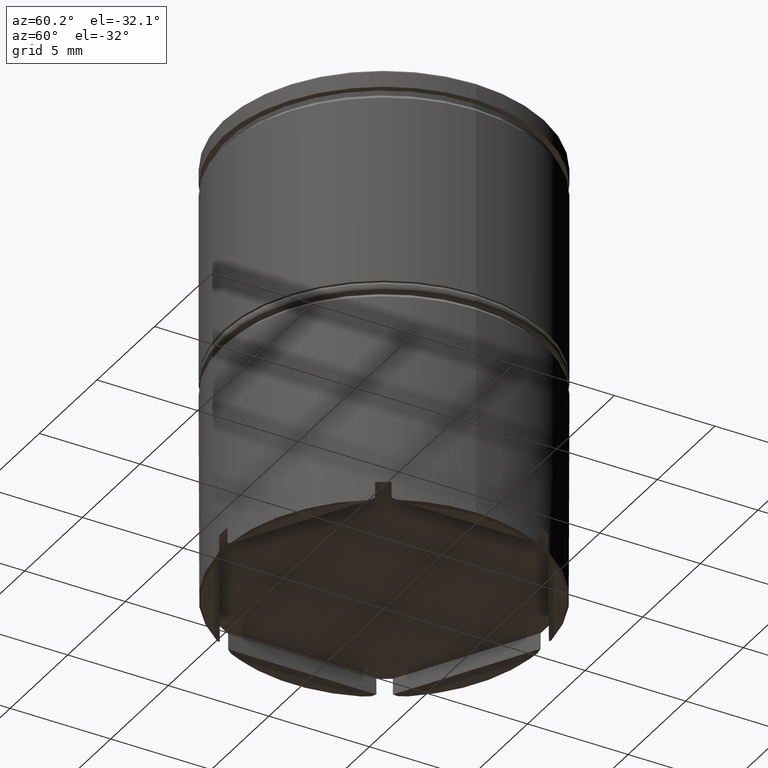
[diagram: clean part render]
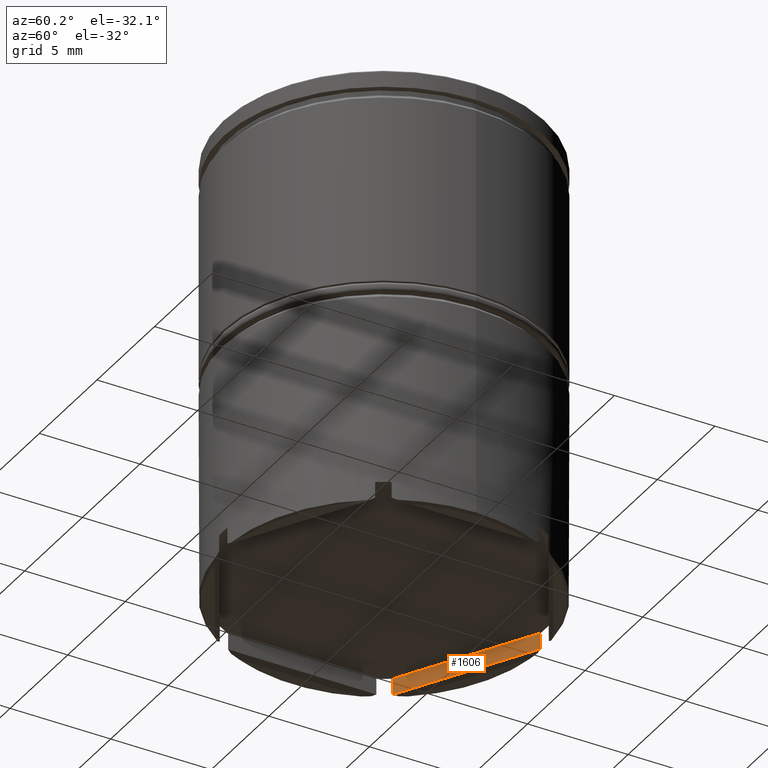
[diagram: same view with one face highlighted and labeled with its STEP entity id]
A machine part, auxiliary view. The second image highlights one B-rep face of the part: STEP entity #1606.
In plain terms, the highlighted planar face has unit normal (-0.5, 0.866, 0).
Its self-contained STEP definition (entity closure, byte-faithful):
#51 = CARTESIAN_POINT ( 'NONE',  ( -6.742569498068907485, 4.305549507752846061, -20.99999999999999645 ) ) ;
#56 = CARTESIAN_POINT ( 'NONE',  ( -7.100000000000005862, 4.099186911246346376, -20.99999999999999645 ) ) ;
#70 = VECTOR ( 'NONE', #337, 1000.000000000000114 ) ;
#103 = DIRECTION ( 'NONE',  ( -0.4999999999999998335, 0.8660254037844387076, 0.000000000000000000 ) ) ;
#131 = LINE ( 'NONE', #1238, #349 ) ;
#166 = AXIS2_PLACEMENT_3D ( 'NONE', #356, #103, #1616 ) ;
#170 = ORIENTED_EDGE ( 'NONE', *, *, #845, .F. ) ;
#238 = EDGE_CURVE ( 'NONE', #1265, #604, #1168, .T. ) ;
#275 = CARTESIAN_POINT ( 'NONE',  ( -0.3574305019310984322, 7.992011225986190404, -21.80000000000000782 ) ) ;
#293 = VECTOR ( 'NONE', #903, 1000.000000000000000 ) ;
#337 = DIRECTION ( 'NONE',  ( 0.8660254037844387076, 0.4999999999999998335, 0.000000000000000000 ) ) ;
#349 = VECTOR ( 'NONE', #1493, 1000.000000000000000 ) ;
#354 = ORIENTED_EDGE ( 'NONE', *, *, #1562, .T. ) ;
#356 = CARTESIAN_POINT ( 'NONE',  ( -7.100000000000005862, 4.099186911246346376, -20.99999999999999645 ) ) ;
#357 = LINE ( 'NONE', #56, #70 ) ;
#432 = VERTEX_POINT ( 'NONE', #905 ) ;
#519 = CARTESIAN_POINT ( 'NONE',  ( -6.742569498068905709, 4.305549507752851390, 0.000000000000000000 ) ) ;
#586 = VECTOR ( 'NONE', #847, 1000.000000000000114 ) ;
#604 = VERTEX_POINT ( 'NONE', #1226 ) ;
#676 = EDGE_LOOP ( 'NONE', ( #1622, #1020, #354, #170 ) ) ;
#845 = EDGE_CURVE ( 'NONE', #1265, #432, #357, .T. ) ;
#847 = DIRECTION ( 'NONE',  ( 0.8660254037844387076, 0.4999999999999998335, 0.000000000000000000 ) ) ;
#903 = DIRECTION ( 'NONE',  ( 0.000000000000000000, 0.000000000000000000, -1.000000000000000000 ) ) ;
#905 = CARTESIAN_POINT ( 'NONE',  ( -0.3574305019310927700, 7.992011225986188627, -20.99999999999999645 ) ) ;
#1020 = ORIENTED_EDGE ( 'NONE', *, *, #1037, .T. ) ;
#1037 = EDGE_CURVE ( 'NONE', #604, #1199, #1337, .T. ) ;
#1168 = LINE ( 'NONE', #519, #293 ) ;
#1199 = VERTEX_POINT ( 'NONE', #275 ) ;
#1226 = CARTESIAN_POINT ( 'NONE',  ( -6.742569498068905709, 4.305549507752851390, -21.80000000000000782 ) ) ;
#1238 = CARTESIAN_POINT ( 'NONE',  ( -0.3574305019310984322, 7.992011225986190404, 0.000000000000000000 ) ) ;
#1253 = CARTESIAN_POINT ( 'NONE',  ( -0.5499999999999972689, 7.880831174438397646, -21.80000000000000782 ) ) ;
#1265 = VERTEX_POINT ( 'NONE', #51 ) ;
#1337 = LINE ( 'NONE', #1253, #586 ) ;
#1493 = DIRECTION ( 'NONE',  ( -0.000000000000000000, -0.000000000000000000, 1.000000000000000000 ) ) ;
#1505 = FACE_OUTER_BOUND ( 'NONE', #676, .T. ) ;
#1562 = EDGE_CURVE ( 'NONE', #1199, #432, #131, .T. ) ;
#1606 = ADVANCED_FACE ( 'NONE', ( #1505 ), #1628, .F. ) ;
#1616 = DIRECTION ( 'NONE',  ( -0.8660254037844387076, -0.4999999999999998335, 0.000000000000000000 ) ) ;
#1622 = ORIENTED_EDGE ( 'NONE', *, *, #238, .T. ) ;
#1628 = PLANE ( 'NONE',  #166 ) ;